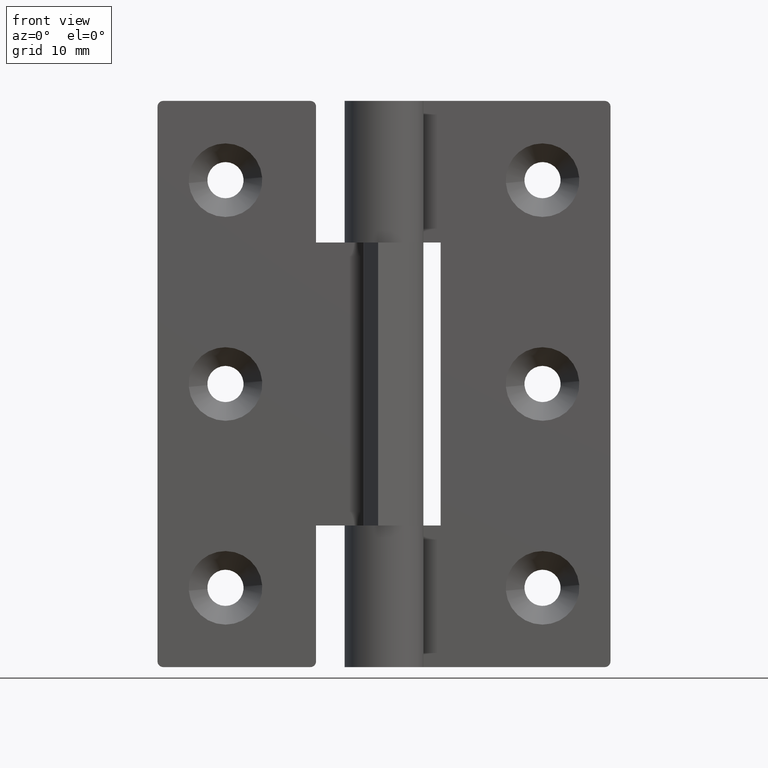
[diagram: clean part render]
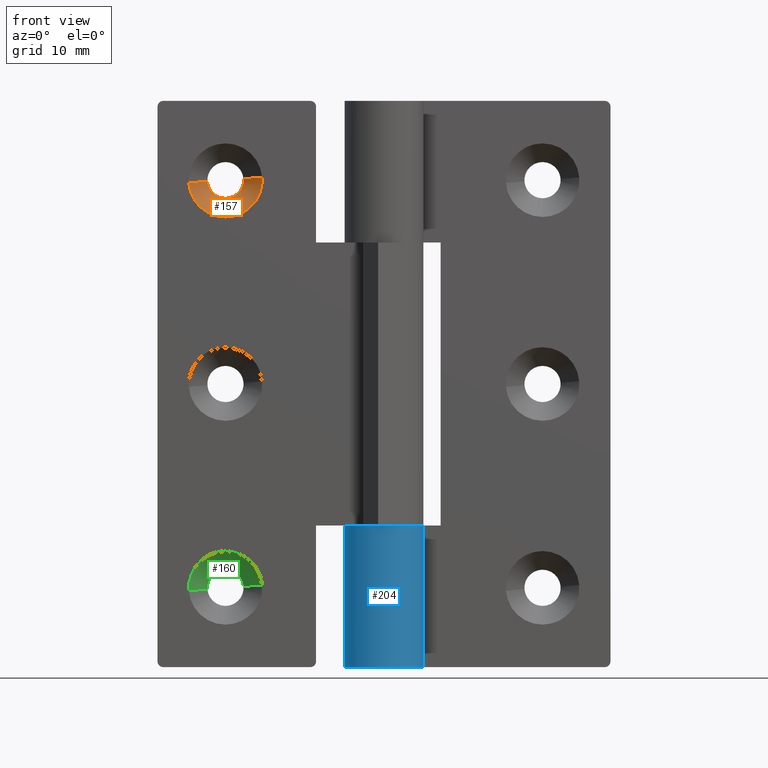
[diagram: same view with three faces highlighted in distinct colors, each labeled with its STEP entity id]
A machine part, front view with three faces highlighted in distinct colors.
Their STEP definitions:

[orange] entity #157 — the highlighted face is a freeform B-spline surface patch.
#157=ADVANCED_FACE('',(#298),#297,.F.);
#297=( BOUNDED_SURFACE() B_SPLINE_SURFACE( 2,1,((#899,#900),(#901,#902),(#903,#904),(#905,#906),(#907,#908),(#909,#910),(#911,#912)), .UNSPECIFIED.,.F.,.F.,.F.) B_SPLINE_SURFACE_WITH_KNOTS((3,1,2,1,3),(2,2),(0.00000000000E+00,1.22207031188E-01,5.57703721077E+00,1.10318673904E+01,1.10867523032E+01),(0.00000000000E+00,2.45218273813E+00), .UNSPECIFIED. ) GEOMETRIC_REPRESENTATION_ITEM() RATIONAL_B_SPLINE_SURFACE(((1.01312363888E+00,1.01312363888E+00),(1.00656181944E+00,1.00656181944E+00),(7.07106781187E-01,7.07106781187E-01),(1.00000000000E+00,1.00000000000E+00),(7.07106781187E-01,7.07106781187E-01),(1.00294700628E+00,1.00294700628E+00),(1.00589401256E+00,1.00589401256E+00))) REPRESENTATION_ITEM('') SURFACE() );
#298=FACE_OUTER_BOUND('',#913,.T.);
#899=CARTESIAN_POINT('',(-1.55577695050E+01,3.19125000000E+00,4.29262981753E+01));
#900=CARTESIAN_POINT('',(-1.72902103179E+01,1.45771875000E+00,4.28443322306E+01));
#901=CARTESIAN_POINT('',(-1.55558696659E+01,3.19125000000E+00,4.29021584306E+01));
#902=CARTESIAN_POINT('',(-1.72861976124E+01,1.45771875000E+00,4.27933459731E+01));
#903=CARTESIAN_POINT('',(-1.54316467785E+01,3.19125000000E+00,4.13237569906E+01));
#904=CARTESIAN_POINT('',(-1.70238228359E+01,1.45771875000E+00,3.94595583446E+01));
#905=CARTESIAN_POINT('',(-1.38777018845E+01,3.19125000000E+00,4.14460551060E+01));
#906=CARTESIAN_POINT('',(-1.37416905902E+01,1.45771875000E+00,3.97178677544E+01));
#907=CARTESIAN_POINT('',(-1.23237569906E+01,3.19125000000E+00,4.15683532215E+01));
#908=CARTESIAN_POINT('',(-1.04595583446E+01,1.45771875000E+00,3.99761771641E+01));
#909=CARTESIAN_POINT('',(-1.24469226641E+01,3.19125000000E+00,4.31333214852E+01));
#910=CARTESIAN_POINT('',(-1.07197001489E+01,1.45771875000E+00,4.32815921898E+01));
#911=CARTESIAN_POINT('',(-1.24477851386E+01,3.19125000000E+00,4.31442802637E+01));
#912=CARTESIAN_POINT('',(-1.07215218065E+01,1.45771875000E+00,4.33047385450E+01));
#913=EDGE_LOOP('',(#1357,#1358,#1359,#1360,#1361,#1362));
#1357=ORIENTED_EDGE('',*,*,#1733,.T.);
#1358=ORIENTED_EDGE('',*,*,#1734,.T.);
#1359=ORIENTED_EDGE('',*,*,#1730,.T.);
#1360=ORIENTED_EDGE('',*,*,#1722,.F.);
#1361=ORIENTED_EDGE('',*,*,#1725,.F.);
#1362=ORIENTED_EDGE('',*,*,#1729,.F.);
#1722=EDGE_CURVE('',#2208,#2209,#2210,.T.);
#1725=EDGE_CURVE('',#2223,#2208,#2230,.T.);
#1729=EDGE_CURVE('',#2249,#2223,#2256,.T.);
#1730=EDGE_CURVE('',#2262,#2209,#2263,.T.);
#1733=EDGE_CURVE('',#2249,#2282,#2283,.T.);
#1734=EDGE_CURVE('',#2282,#2262,#2289,.T.);
#2208=VERTEX_POINT('',#3392);
#2209=VERTEX_POINT('',#3393);
#2210=CIRCLE('',#3397,3.25000000010E+00);
#2223=VERTEX_POINT('',#3403);
#2230=CIRCLE('',#3411,3.25000000003E+00);
#2249=VERTEX_POINT('',#3419);
#2256=LINE('',#3424,#3425);
#2262=VERTEX_POINT('',#3427);
#2263=LINE('',#3428,#3429);
#2282=VERTEX_POINT('',#3440);
#2283=CIRCLE('',#3444,1.59999997245E+00);
#2289=CIRCLE('',#3448,1.60000004347E+00);
#3392=CARTESIAN_POINT('',(-1.40000000000E+01,1.50000000000E+00,3.97500000000E+01));
#3393=CARTESIAN_POINT('',(-1.72399813346E+01,1.49999999998E+00,4.27450079387E+01));
#3394=CARTESIAN_POINT('',(-1.39999999999E+01,1.49999999998E+00,4.30000000001E+01));
#3395=DIRECTION('',(1.95385471160E-26,1.00000000000E+00,6.31932113455E-12));
#3396=DIRECTION('',(2.32981497335E-11,-6.31932113455E-12,1.00000000000E+00));
#3397=AXIS2_PLACEMENT_3D('',#3394,#3395,#3396);
#3403=CARTESIAN_POINT('',(-1.07600186654E+01,1.49999999998E+00,4.32549920613E+01));
#3408=CARTESIAN_POINT('',(-1.40000000000E+01,1.49999999997E+00,4.30000000000E+01));
#3409=DIRECTION('',(-1.49104142911E-11,1.00000000000E+00,1.47492264451E-10));
#3410=DIRECTION('',(-9.96917333730E-01,-3.29234075896E-12,-7.84590957630E-02));
#3411=AXIS2_PLACEMENT_3D('',#3408,#3409,#3410);
#3419=CARTESIAN_POINT('',(-1.24049322660E+01,3.14999999991E+00,4.31255345539E+01));
#3424=CARTESIAN_POINT('',(-1.24049322660E+01,3.14999999991E+00,4.31255345539E+01));
#3425=VECTOR('',#3426,2.33345237781E+00);
#3426=DIRECTION('',(7.04927006983E-01,-7.07106781187E-01,5.54789584018E-02));
#3427=CARTESIAN_POINT('',(-1.55970156897E+01,3.14999999999E+00,4.29023225368E+01));
#3428=CARTESIAN_POINT('',(-1.55970156897E+01,3.14999999999E+00,4.29023225368E+01));
#3429=VECTOR('',#3430,2.33379176304E+00);
#3430=DIRECTION('',(-7.03989820750E-01,-7.07003952170E-01,-6.74072985334E-02));
#3440=CARTESIAN_POINT('',(-1.24104492995E+01,3.15000000000E+00,4.28174388584E+01));
#3441=CARTESIAN_POINT('',(-1.39999999723E+01,3.14999999017E+00,4.30000000000E+01));
#3442=DIRECTION('',(-6.18063912548E-09,1.00000000000E+00,9.62257717062E-10));
#3443=DIRECTION('',(-9.96917333591E-01,-6.08608840480E-09,-7.84590975296E-02));
#3444=AXIS2_PLACEMENT_3D('',#3441,#3442,#3443);
#3445=CARTESIAN_POINT('',(-1.40000000388E+01,3.15000000000E+00,4.30000000435E+01));
#3446=DIRECTION('',(2.75743082603E-16,1.00000000000E+00,-3.16693224779E-17));
#3447=DIRECTION('',(-9.93469185073E-01,2.77555748616E-16,1.14100737552E-01));
#3448=AXIS2_PLACEMENT_3D('',#3445,#3446,#3447);

[blue] entity #204 — the highlighted cylindrical surface (partial cylindrical patch) has radius 3.5 mm, axis along (-0, 0, -1).
#204=ADVANCED_FACE('',(#774),#773,.T.);
#773=CYLINDRICAL_SURFACE('',#1253,3.50000000000E+00);
#774=FACE_OUTER_BOUND('',#1254,.T.);
#1250=CARTESIAN_POINT('',(3.07034186999E-18,-4.36364988674E-16,-3.20312500000E-01));
#1251=DIRECTION('',(-1.34793377706E-16,1.17632398631E-18,-1.00000000000E+00));
#1252=DIRECTION('',(5.37299608347E-01,8.43391445813E-01,-7.14323274619E-17));
#1253=AXIS2_PLACEMENT_3D('',#1250,#1251,#1252);
#1254=EDGE_LOOP('',(#1633,#1634,#1635,#1636));
#1633=ORIENTED_EDGE('',*,*,#1848,.T.);
#1634=ORIENTED_EDGE('',*,*,#1780,.T.);
#1635=ORIENTED_EDGE('',*,*,#1853,.F.);
#1636=ORIENTED_EDGE('',*,*,#1860,.F.);
#1780=EDGE_CURVE('',#2587,#2580,#2588,.T.);
#1848=EDGE_CURVE('',#3049,#2587,#3050,.T.);
#1853=EDGE_CURVE('',#3076,#2580,#3083,.T.);
#1860=EDGE_CURVE('',#3049,#3076,#3127,.T.);
#2580=VERTEX_POINT('',#3611);
#2587=VERTEX_POINT('',#3615);
#2588=LINE('',#3616,#3617);
#3049=VERTEX_POINT('',#3914);
#3050=CIRCLE('',#3918,3.50000000000E+00);
#3076=VERTEX_POINT('',#3932);
#3083=CIRCLE('',#3939,3.50000000000E+00);
#3127=LINE('',#3962,#3963);
#3611=CARTESIAN_POINT('',(0.00000000000E+00,3.50000000000E+00,0.00000000000E+00));
#3615=CARTESIAN_POINT('',(0.00000000000E+00,3.50000000000E+00,1.25000000000E+01));
#3616=CARTESIAN_POINT('',(0.00000000000E+00,3.50000000000E+00,1.25000000000E+01));
#3617=VECTOR('',#3618,1.25000000000E+01);
#3618=DIRECTION('',(0.00000000000E+00,4.01456645704E-15,-1.00000000000E+00));
#3914=CARTESIAN_POINT('',(3.18551408724E+00,1.45000000000E+00,1.25000000000E+01));
#3915=CARTESIAN_POINT('',(3.13082892944E-14,-3.64153152077E-14,1.25000000000E+01));
#3916=DIRECTION('',(8.77332185345E-17,-1.92741657628E-16,-1.00000000000E+00));
#3917=DIRECTION('',(9.10146882068E-01,4.14285714286E-01,-1.36075172528E-32));
#3918=AXIS2_PLACEMENT_3D('',#3915,#3916,#3917);
#3932=CARTESIAN_POINT('',(3.18551408724E+00,1.45000000000E+00,0.00000000000E+00));
#3936=CARTESIAN_POINT('',(-4.44089209850E-16,0.00000000000E+00,0.00000000000E+00));
#3937=DIRECTION('',(0.00000000000E+00,0.00000000000E+00,-1.00000000000E+00));
#3938=DIRECTION('',(9.10146882068E-01,4.14285714286E-01,0.00000000000E+00));
#3939=AXIS2_PLACEMENT_3D('',#3936,#3937,#3938);
#3962=CARTESIAN_POINT('',(3.18551408724E+00,1.45000000000E+00,1.25000000000E+01));
#3963=VECTOR('',#3964,1.25000000000E+01);
#3964=DIRECTION('',(0.00000000000E+00,0.00000000000E+00,-1.00000000000E+00));

[green] entity #160 — the highlighted face is a freeform B-spline surface patch.
#160=ADVANCED_FACE('',(#328),#327,.F.);
#327=( BOUNDED_SURFACE() B_SPLINE_SURFACE( 2,1,((#944,#945),(#946,#947),(#948,#949),(#950,#951),(#952,#953),(#954,#955),(#956,#957)), .UNSPECIFIED.,.T.,.F.,.F.) B_SPLINE_SURFACE_WITH_KNOTS((3,2,2,3),(2,2),(0.00000000000E+00,3.33333333333E-01,6.66666666667E-01,1.00000000000E+00),(0.00000000000E+00,1.00000000000E+00), .UNSPECIFIED. ) GEOMETRIC_REPRESENTATION_ITEM() RATIONAL_B_SPLINE_SURFACE(((1.00000000000E+00,1.00000000000E+00),(5.00000000000E-01,5.00000000000E-01),(1.00000000000E+00,1.00000000000E+00),(5.00000000000E-01,5.00000000000E-01),(1.00000000000E+00,1.00000000000E+00),(5.00000000000E-01,5.00000000000E-01),(1.00000000000E+00,1.00000000000E+00))) REPRESENTATION_ITEM('') SURFACE() );
#328=FACE_OUTER_BOUND('',#958,.T.);
#944=CARTESIAN_POINT('',(-1.40000000000E+01,4.75000000000E+00,7.00000000000E+00));
#945=CARTESIAN_POINT('',(-1.35594103703E+01,1.53138709041E-01,2.42430174656E+00));
#946=CARTESIAN_POINT('',(-1.40000000000E+01,4.75000000000E+00,7.00000000000E+00));
#947=CARTESIAN_POINT('',(-5.63406851527E+00,1.53138709041E-01,3.18742537042E+00));
#948=CARTESIAN_POINT('',(-1.40000000000E+01,4.75000000000E+00,7.00000000000E+00));
#949=CARTESIAN_POINT('',(-1.02576238873E+01,1.53138709041E-01,9.66941093865E+00));
#950=CARTESIAN_POINT('',(-1.40000000000E+01,4.75000000000E+00,7.00000000000E+00));
#951=CARTESIAN_POINT('',(-1.48811792593E+01,1.53138709041E-01,1.61513965069E+01));
#952=CARTESIAN_POINT('',(-1.40000000000E+01,4.75000000000E+00,7.00000000000E+00));
#953=CARTESIAN_POINT('',(-1.81829657424E+01,1.53138709041E-01,8.90628731479E+00));
#954=CARTESIAN_POINT('',(-1.40000000000E+01,4.75000000000E+00,7.00000000000E+00));
#955=CARTESIAN_POINT('',(-2.14847522254E+01,1.53138709041E-01,1.66117812269E+00));
#956=CARTESIAN_POINT('',(-1.40000000000E+01,4.75000000000E+00,7.00000000000E+00));
#957=CARTESIAN_POINT('',(-1.35594103703E+01,1.53138709041E-01,2.42430174656E+00));
#958=EDGE_LOOP('',(#1376,#1377,#1378,#1379,#1380,#1381,#1382));
#1376=ORIENTED_EDGE('',*,*,#1742,.T.);
#1377=ORIENTED_EDGE('',*,*,#1743,.T.);
#1378=ORIENTED_EDGE('',*,*,#1716,.F.);
#1379=ORIENTED_EDGE('',*,*,#1715,.F.);
#1380=ORIENTED_EDGE('',*,*,#1744,.F.);
#1381=ORIENTED_EDGE('',*,*,#1745,.T.);
#1382=ORIENTED_EDGE('',*,*,#1746,.T.);
#1715=EDGE_CURVE('',#2153,#2160,#2161,.T.);
#1716=EDGE_CURVE('',#2160,#2167,#2168,.T.);
#1742=EDGE_CURVE('',#2342,#2343,#2344,.T.);
#1743=EDGE_CURVE('',#2343,#2167,#2350,.T.);
#1744=EDGE_CURVE('',#2356,#2153,#2357,.T.);
#1745=EDGE_CURVE('',#2356,#2363,#2364,.T.);
#1746=EDGE_CURVE('',#2363,#2342,#2370,.T.);
#2153=VERTEX_POINT('',#3353);
#2160=VERTEX_POINT('',#3358);
#2161=CIRCLE('',#3362,3.25000000003E+00);
#2167=VERTEX_POINT('',#3363);
#2168=CIRCLE('',#3367,3.25000000010E+00);
#2342=VERTEX_POINT('',#3480);
#2343=VERTEX_POINT('',#3481);
#2344=CIRCLE('',#3485,1.60000000049E+00);
#2350=LINE('',#3486,#3487);
#2356=VERTEX_POINT('',#3489);
#2357=LINE('',#3490,#3491);
#2363=VERTEX_POINT('',#3493);
#2364=CIRCLE('',#3497,1.60000000000E+00);
#2370=CIRCLE('',#3501,1.60000000000E+00);
#3353=CARTESIAN_POINT('',(-1.72399813346E+01,1.49999999998E+00,6.74500793874E+00));
#3358=CARTESIAN_POINT('',(-1.40000000000E+01,1.50000000000E+00,1.02500000000E+01));
#3359=CARTESIAN_POINT('',(-1.40000000000E+01,1.49999999997E+00,6.99999999997E+00));
#3360=DIRECTION('',(1.49108710344E-11,1.00000000000E+00,-1.47498067926E-10));
#3361=DIRECTION('',(9.96917333730E-01,-3.29234075896E-12,7.84590957630E-02));
#3362=AXIS2_PLACEMENT_3D('',#3359,#3360,#3361);
#3363=CARTESIAN_POINT('',(-1.07600186654E+01,1.49999999998E+00,7.25499206126E+00));
#3364=CARTESIAN_POINT('',(-1.40000000001E+01,1.49999999998E+00,6.99999999990E+00));
#3365=DIRECTION('',(-4.83105371903E-17,1.00000000000E+00,-6.31945777738E-12));
#3366=DIRECTION('',(-2.32970565908E-11,-6.31945777738E-12,-1.00000000000E+00));
#3367=AXIS2_PLACEMENT_3D('',#3364,#3365,#3366);
#3480=CARTESIAN_POINT('',(-1.40000000000E+01,3.15000000000E+00,8.60000000000E+00));
#3481=CARTESIAN_POINT('',(-1.24049322660E+01,3.14999999991E+00,7.12553455386E+00));
#3482=CARTESIAN_POINT('',(-1.40000000004E+01,3.14999999990E+00,6.99999999951E+00));
#3483=DIRECTION('',(6.86915450674E-16,1.00000000000E+00,-6.15751893730E-11));
#3484=DIRECTION('',(-2.25124363527E-10,-6.15751893730E-11,-1.00000000000E+00));
#3485=AXIS2_PLACEMENT_3D('',#3482,#3483,#3484);
#3486=CARTESIAN_POINT('',(-1.24049322660E+01,3.14999999991E+00,7.12553455386E+00));
#3487=VECTOR('',#3488,2.33345237781E+00);
#3488=DIRECTION('',(7.04927006983E-01,-7.07106781187E-01,5.54789584018E-02));
#3489=CARTESIAN_POINT('',(-1.55970156897E+01,3.14999999999E+00,6.90232253682E+00));
#3490=CARTESIAN_POINT('',(-1.55970156897E+01,3.14999999999E+00,6.90232253682E+00));
#3491=VECTOR('',#3492,2.33379176304E+00);
#3492=DIRECTION('',(-7.03989820750E-01,-7.07003952170E-01,-6.74072985334E-02));
#3493=CARTESIAN_POINT('',(-1.55895506736E+01,3.15000000004E+00,7.18256137588E+00));
#3494=CARTESIAN_POINT('',(-1.40000000000E+01,3.14999999998E+00,7.00000000000E+00));
#3495=DIRECTION('',(1.53532994668E-11,1.00000000000E+00,-1.93270732989E-10));
#3496=DIRECTION('',(9.98134806070E-01,-3.52579077045E-12,6.10484144851E-02));
#3497=AXIS2_PLACEMENT_3D('',#3494,#3495,#3496);
#3498=CARTESIAN_POINT('',(-1.40000000000E+01,3.14999999998E+00,7.00000000000E+00));
#3499=DIRECTION('',(1.53532994668E-11,1.00000000000E+00,-1.93270732989E-10));
#3500=DIRECTION('',(9.98134806070E-01,-3.52579077045E-12,6.10484144851E-02));
#3501=AXIS2_PLACEMENT_3D('',#3498,#3499,#3500);